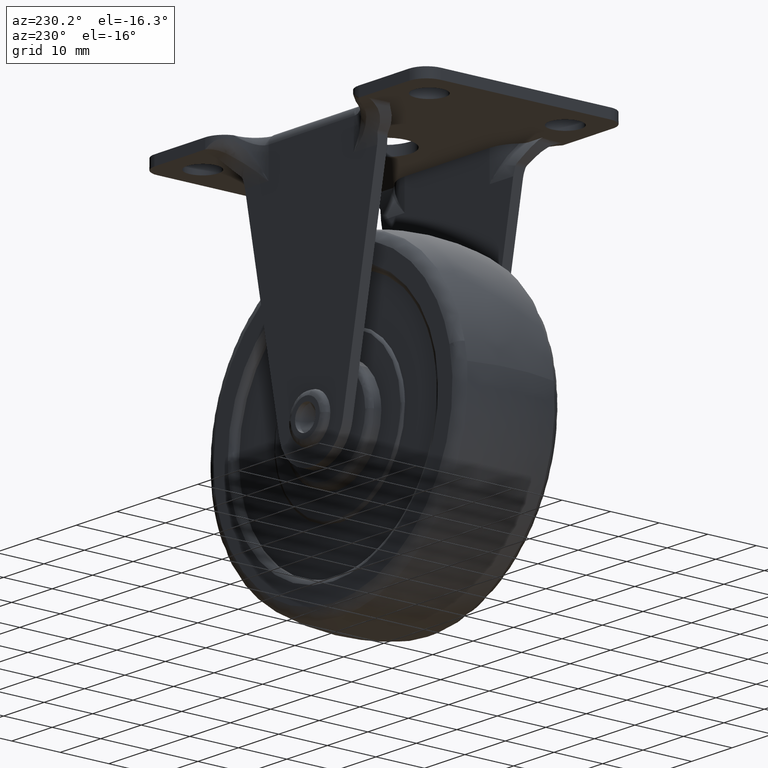
[diagram: clean part render]
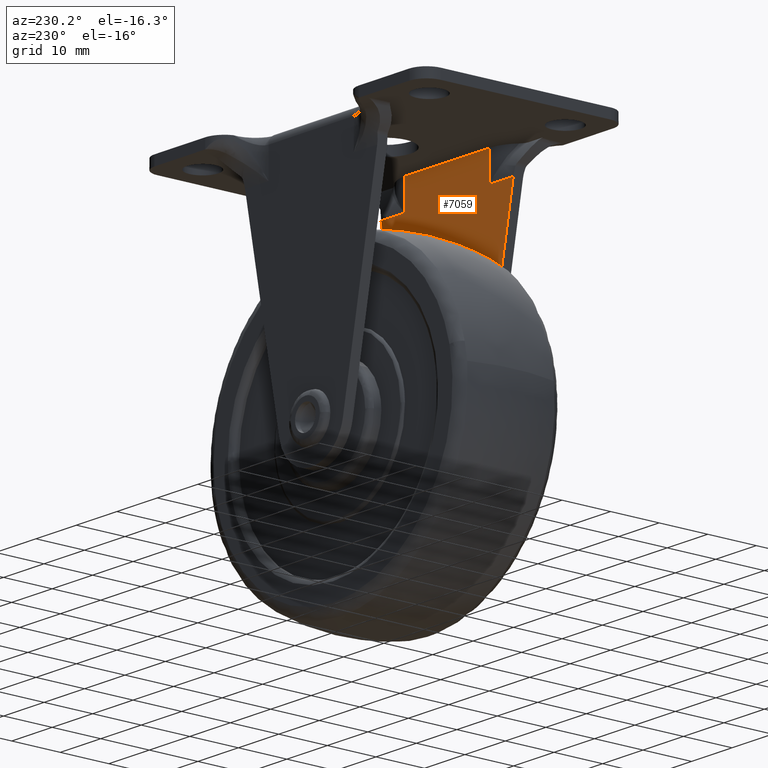
[diagram: same view with one face highlighted and labeled with its STEP entity id]
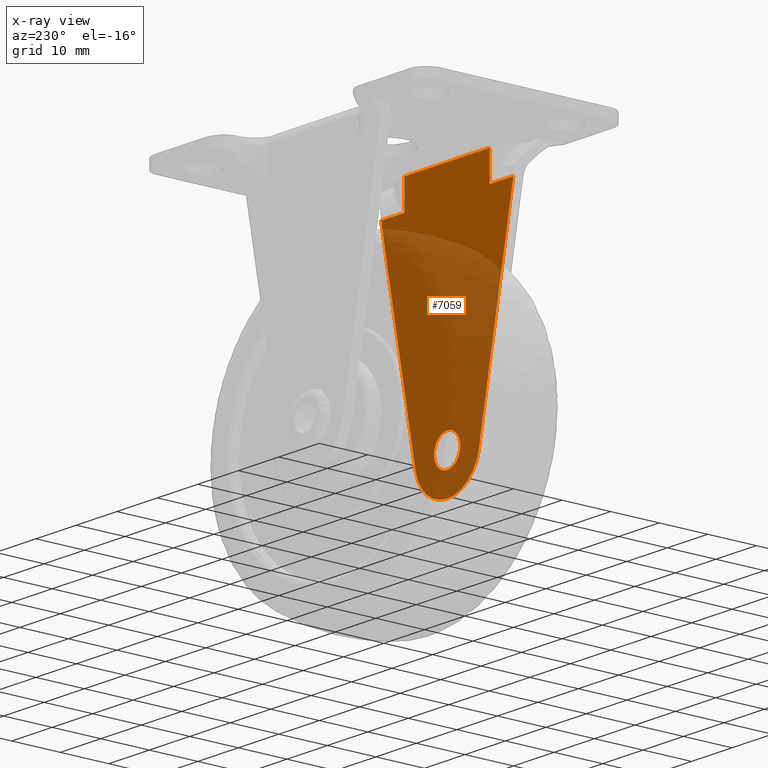
[diagram: x-ray of the same camera — body ghosted, the highlighted face saturated]
A machine part, auxiliary view. The second image highlights one B-rep face of the part: STEP entity #7059.
The next image is the same camera in x-ray: the body ghosted, the highlighted face saturated — about 71% of this face is hidden behind the body in this view.
In plain terms, the highlighted face is a freeform B-spline surface patch.
Its self-contained STEP definition (entity closure, byte-faithful):
#3365=CARTESIAN_POINT('',(0.0,-13.0,8.250000000000000));
#3366=VERTEX_POINT('',#3365);
#3367=CARTESIAN_POINT('',(2.329115324815828,-13.000000000008971,7.266653786296206));
#3368=VERTEX_POINT('',#3367);
#3369=CARTESIAN_POINT('',(0.0,-13.0,8.250000000000000));
#3370=CARTESIAN_POINT('',(0.256970867640964,-13.000000000001000,8.250057015038937));
#3371=CARTESIAN_POINT('',(0.716772829669965,-13.000000000002750,8.195163997957780));
#3372=CARTESIAN_POINT('',(1.539048269861160,-13.000000000005940,7.912833036176410));
#3373=CARTESIAN_POINT('',(2.046383060699153,-13.000000000007891,7.557765771928701));
#3374=CARTESIAN_POINT('',(2.329115324815828,-13.000000000008971,7.266653786296206));
#3375=B_SPLINE_CURVE_WITH_KNOTS('',3,(#3369,#3370,#3371,#3372,#3373,#3374),.UNSPECIFIED.,.F.,.U.,(4,1,1,4),(0.000000031797549,0.770907020071384,1.379504647372482,2.596729086568806),.UNSPECIFIED.);
#3376=EDGE_CURVE('',#3366,#3368,#3375,.T.);
#3439=CARTESIAN_POINT('',(2.396151679918114,-12.999999999989720,2.804331642689335));
#3440=VERTEX_POINT('',#3439);
#3446=CARTESIAN_POINT('',(0.0,-13.0,1.750000000000000));
#3447=VERTEX_POINT('',#3446);
#3448=CARTESIAN_POINT('',(2.396151679918114,-12.999999999989720,2.804331642689335));
#3449=CARTESIAN_POINT('',(2.187664821071553,-12.999999999990640,2.576613204500716));
#3450=CARTESIAN_POINT('',(1.781850320195358,-12.999999999992330,2.244348066195585));
#3451=CARTESIAN_POINT('',(0.968115099090186,-12.999999999995870,1.854264059239442));
#3452=CARTESIAN_POINT('',(0.378933726983593,-12.999999999998350,1.749749896012651));
#3453=CARTESIAN_POINT('',(0.0,-13.0,1.750000000000000));
#3454=B_SPLINE_CURVE_WITH_KNOTS('',3,(#3448,#3449,#3450,#3451,#3452,#3453),.UNSPECIFIED.,.F.,.U.,(4,1,1,4),(0.000000033832529,0.926191723418197,1.557682210640198,2.694371114665781),.UNSPECIFIED.);
#3455=EDGE_CURVE('',#3440,#3447,#3454,.T.);
#3457=CARTESIAN_POINT('',(-3.249999999999659,-13.0,5.000001487796945));
#3458=VERTEX_POINT('',#3457);
#3459=CARTESIAN_POINT('',(0.0,-13.0,1.750000000000000));
#3460=CARTESIAN_POINT('',(-0.265885826310707,-13.0,1.749952367618813));
#3461=CARTESIAN_POINT('',(-0.850852319143115,-12.999999999999989,1.822109063394571));
#3462=CARTESIAN_POINT('',(-1.633089698440202,-13.000000000000011,2.146061872238970));
#3463=CARTESIAN_POINT('',(-2.216152493243520,-13.000000000000011,2.595540245499515));
#3464=CARTESIAN_POINT('',(-2.657669914598653,-13.0,3.094863719753596));
#3465=CARTESIAN_POINT('',(-2.991434776286388,-13.0,3.659440940952537));
#3466=CARTESIAN_POINT('',(-3.205485515212404,-12.999999999999989,4.335281803296847));
#3467=CARTESIAN_POINT('',(-3.250017945566640,-13.0,4.787291646316724));
#3468=CARTESIAN_POINT('',(-3.249999999999659,-13.0,5.000001487796945));
#3469=B_SPLINE_CURVE_WITH_KNOTS('',3,(#3459,#3460,#3461,#3462,#3463,#3464,#3465,#3466,#3467,#3468),.UNSPECIFIED.,.F.,.U.,(4,1,1,1,1,1,1,4),(0.000000113966560,0.797664369919032,1.754898676115779,2.512711383816618,2.991262029375205,3.749071992039072,4.466986997800102,5.105120932906210),.UNSPECIFIED.);
#3470=EDGE_CURVE('',#3447,#3458,#3469,.T.);
#3472=CARTESIAN_POINT('',(-3.249999999999659,-13.0,5.000001487796945));
#3473=CARTESIAN_POINT('',(-3.250202058730376,-13.000000000000030,5.358975961622683));
#3474=CARTESIAN_POINT('',(-3.136554244261292,-12.999999999999980,6.036875397549130));
#3475=CARTESIAN_POINT('',(-2.697071934893972,-12.999999999999989,6.883828384066436));
#3476=CARTESIAN_POINT('',(-2.086253312737548,-13.000000000000011,7.541391867981304));
#3477=CARTESIAN_POINT('',(-1.391573261260832,-13.000000000000041,7.975310517837198));
#3478=CARTESIAN_POINT('',(-0.664716105123325,-12.999999999999901,8.205477556522965));
#3479=CARTESIAN_POINT('',(-0.212710830796193,-13.000000000000130,8.250021908561999));
#3480=CARTESIAN_POINT('',(0.0,-13.0,8.250000000000000));
#3481=B_SPLINE_CURVE_WITH_KNOTS('',3,(#3472,#3473,#3474,#3475,#3476,#3477,#3478,#3479,#3480),.UNSPECIFIED.,.F.,.U.,(4,1,1,1,1,1,4),(0.000000114484727,1.076858108457942,2.034093156163409,2.831744693986651,3.749070760498134,4.466985529434083,5.105119255801801),.UNSPECIFIED.);
#3482=EDGE_CURVE('',#3458,#3366,#3481,.T.);
#3501=CARTESIAN_POINT('',(3.249999999999659,-13.0,4.999998512203105));
#3502=VERTEX_POINT('',#3501);
#3503=CARTESIAN_POINT('',(2.329115324815828,-13.000000000008971,7.266653786296206));
#3504=CARTESIAN_POINT('',(2.456679927574144,-13.000000000008439,7.135581571735081));
#3505=CARTESIAN_POINT('',(2.739557973987650,-13.000000000007111,6.791053625301121));
#3506=CARTESIAN_POINT('',(3.130330670413340,-13.000000000004119,6.044965366058872));
#3507=CARTESIAN_POINT('',(3.250340572873685,-13.000000000001570,5.391983792564863));
#3508=CARTESIAN_POINT('',(3.249999999999659,-13.0,4.999998512203105));
#3509=B_SPLINE_CURVE_WITH_KNOTS('',3,(#3503,#3504,#3505,#3506,#3507,#3508),.UNSPECIFIED.,.F.,.U.,(4,1,1,4),(0.000000026769014,0.548709627388312,1.332576467142457,2.508392232311217),.UNSPECIFIED.);
#3510=EDGE_CURVE('',#3368,#3502,#3509,.T.);
#3512=CARTESIAN_POINT('',(3.249999999999659,-13.0,4.999998512203105));
#3513=CARTESIAN_POINT('',(3.250138484803813,-12.999999999998360,4.673533139270334));
#3514=CARTESIAN_POINT('',(3.160337621429038,-12.999999999995829,4.083472444701382));
#3515=CARTESIAN_POINT('',(2.827946991271536,-12.999999999992241,3.345322392544881));
#3516=CARTESIAN_POINT('',(2.540368783812136,-12.999999999990470,2.961690810162900));
#3517=CARTESIAN_POINT('',(2.396151679918114,-12.999999999989720,2.804331642689335));
#3518=B_SPLINE_CURVE_WITH_KNOTS('',3,(#3512,#3513,#3514,#3515,#3516,#3517),.UNSPECIFIED.,.F.,.U.,(4,1,1,4),(0.000000024761972,0.979373264099598,1.770392916128511,2.410748079395678),.UNSPECIFIED.);
#3519=EDGE_CURVE('',#3502,#3440,#3518,.T.);
#6137=CARTESIAN_POINT('',(10.514709999999999,-13.0,46.500000000000000));
#6138=VERTEX_POINT('',#6137);
#6376=CARTESIAN_POINT('',(-10.514711081367521,-13.000000000005681,46.500000000000000));
#6377=VERTEX_POINT('',#6376);
#6862=CARTESIAN_POINT('',(-10.514711081367521,-13.000000000005681,52.500000000000000));
#6863=VERTEX_POINT('',#6862);
#6864=CARTESIAN_POINT('',(-10.514711081367521,-13.000000000005681,46.500000000000000));
#6865=CARTESIAN_POINT('',(-10.514711081367521,-13.000000000005681,52.500000000000000));
#6866=QUASI_UNIFORM_CURVE('',1,(#6864,#6865),.UNSPECIFIED.,.F.,.U.);
#6867=EDGE_CURVE('',#6377,#6863,#6866,.T.);
#6896=CARTESIAN_POINT('',(10.514710000000139,-13.0,52.500000000000000));
#6897=VERTEX_POINT('',#6896);
#6909=CARTESIAN_POINT('',(10.514709999999999,-13.0,46.500000000000000));
#6910=CARTESIAN_POINT('',(10.514710000000139,-13.0,52.500000000000000));
#6911=QUASI_UNIFORM_CURVE('',1,(#6909,#6910),.UNSPECIFIED.,.F.,.U.);
#6912=EDGE_CURVE('',#6138,#6897,#6911,.T.);
#6987=CARTESIAN_POINT('',(-17.965455242359109,-13.0,-5.772235035586673));
#6988=CARTESIAN_POINT('',(-17.965455242359109,-13.0,55.272226863603613));
#6989=CARTESIAN_POINT('',(17.965448889688581,-13.0,-5.772235035586673));
#6990=CARTESIAN_POINT('',(17.965448889688581,-13.0,55.272226863603613));
#6991=B_SPLINE_SURFACE_WITH_KNOTS('',1,1,((#6987,#6989),(#6988,#6990)),.UNSPECIFIED.,.F.,.F.,.U.,(2,2),(2,2),(0.0,61.044461899190289),(0.0,35.930904132047687),.UNSPECIFIED.);
#6992=CARTESIAN_POINT('',(-16.333717015647000,-13.0,46.500000000000000));
#6993=VERTEX_POINT('',#6992);
#6994=CARTESIAN_POINT('',(-7.848986975766269,-13.0,3.452937152455845));
#6995=VERTEX_POINT('',#6994);
#6996=CARTESIAN_POINT('',(-16.333717015647000,-13.0,46.500000000000000));
#6997=CARTESIAN_POINT('',(-7.848986975766269,-13.0,3.452937152455845));
#6998=QUASI_UNIFORM_CURVE('',1,(#6996,#6997),.UNSPECIFIED.,.F.,.U.);
#6999=EDGE_CURVE('',#6993,#6995,#6998,.T.);
#7000=ORIENTED_EDGE('',*,*,#6999,.F.);
#7001=CARTESIAN_POINT('',(-16.333717015647000,-13.0,46.500000000000000));
#7002=CARTESIAN_POINT('',(-10.514711081367521,-13.000000000005681,46.500000000000000));
#7003=QUASI_UNIFORM_CURVE('',1,(#7001,#7002),.UNSPECIFIED.,.F.,.U.);
#7004=EDGE_CURVE('',#6993,#6377,#7003,.T.);
#7005=ORIENTED_EDGE('',*,*,#7004,.T.);
#7006=ORIENTED_EDGE('',*,*,#6867,.T.);
#7007=CARTESIAN_POINT('',(-10.514711081367521,-13.000000000005681,52.500000000000000));
#7008=CARTESIAN_POINT('',(10.514710000000139,-13.0,52.500000000000000));
#7009=QUASI_UNIFORM_CURVE('',1,(#7007,#7008),.UNSPECIFIED.,.F.,.U.);
#7010=EDGE_CURVE('',#6863,#6897,#7009,.T.);
#7011=ORIENTED_EDGE('',*,*,#7010,.T.);
#7012=ORIENTED_EDGE('',*,*,#6912,.F.);
#7013=CARTESIAN_POINT('',(16.333710078837349,-13.0,46.500000000000000));
#7014=VERTEX_POINT('',#7013);
#7015=CARTESIAN_POINT('',(10.514709999999999,-13.0,46.500000000000000));
#7016=CARTESIAN_POINT('',(16.333710078837349,-13.0,46.500000000000000));
#7017=QUASI_UNIFORM_CURVE('',1,(#7015,#7016),.UNSPECIFIED.,.F.,.U.);
#7018=EDGE_CURVE('',#6138,#7014,#7017,.T.);
#7019=ORIENTED_EDGE('',*,*,#7018,.T.);
#7020=CARTESIAN_POINT('',(7.846932247935651,-13.0,3.442548782045605));
#7021=VERTEX_POINT('',#7020);
#7022=CARTESIAN_POINT('',(7.846932247935651,-13.0,3.442548782045605));
#7023=CARTESIAN_POINT('',(16.333710078837349,-13.0,46.500000000000000));
#7024=QUASI_UNIFORM_CURVE('',1,(#7022,#7023),.UNSPECIFIED.,.F.,.U.);
#7025=EDGE_CURVE('',#7021,#7014,#7024,.T.);
#7026=ORIENTED_EDGE('',*,*,#7025,.F.);
#7027=CARTESIAN_POINT('',(7.846932247935651,-13.0,3.442548782045605));
#7028=CARTESIAN_POINT('',(7.768846354976973,-13.0,3.049032196680977));
#7029=CARTESIAN_POINT('',(7.545603227700584,-13.000000000000020,2.246101097641451));
#7030=CARTESIAN_POINT('',(6.997978775907779,-13.0,1.042314024504522));
#7031=CARTESIAN_POINT('',(6.235495566178594,-12.999999999999959,-0.074772995234637));
#7032=CARTESIAN_POINT('',(5.293986912485002,-13.000000000000011,-1.044051731800759));
#7033=CARTESIAN_POINT('',(4.209128699380675,-13.0,-1.849655766345787));
#7034=CARTESIAN_POINT('',(2.872856276676656,-12.999999999999970,-2.523163188476290));
#7035=CARTESIAN_POINT('',(1.399791252501536,-13.000000000000041,-2.927629294479673));
#7036=CARTESIAN_POINT('',(0.109077808756399,-12.999999999999890,-3.023972795147531));
#7037=CARTESIAN_POINT('',(-1.122384833725214,-13.000000000000060,-2.950312685920894));
#7038=CARTESIAN_POINT('',(-2.334526697368316,-13.0,-2.698519192310627));
#7039=CARTESIAN_POINT('',(-3.586133302119440,-12.999999999999980,-2.187597259739210));
#7040=CARTESIAN_POINT('',(-4.717276617860445,-13.000000000000011,-1.504408634287096));
#7041=CARTESIAN_POINT('',(-5.703920369192727,-13.0,-0.665703054719901));
#7042=CARTESIAN_POINT('',(-6.586909958070623,-13.000000000000011,0.394839958803544));
#7043=CARTESIAN_POINT('',(-7.369095217708410,-13.0,1.736708149504907));
#7044=CARTESIAN_POINT('',(-7.721702692302291,-12.999999999999989,2.806221034544544));
#7045=CARTESIAN_POINT('',(-7.848986975766269,-13.0,3.452937152455845));
#7046=B_SPLINE_CURVE_WITH_KNOTS('',3,(#7027,#7028,#7029,#7030,#7031,#7032,#7033,#7034,#7035,#7036,#7037,#7038,#7039,#7040,#7041,#7042,#7043,#7044,#7045),.UNSPECIFIED.,.F.,.U.,(4,1,1,1,1,1,1,1,1,1,1,1,1,1,1,1,4),(0.000000140502657,1.203572246636909,2.493115458923167,3.954637227073352,5.244217341401651,6.533792217094401,7.995313090529640,9.714744176677669,11.090198803892971,11.863920869459040,13.411404396505221,14.786965886630860,15.904588404121300,17.366099998771009,18.655681476536781,20.031192261972048,22.008514714943551),.UNSPECIFIED.);
#7047=EDGE_CURVE('',#7021,#6995,#7046,.T.);
#7048=ORIENTED_EDGE('',*,*,#7047,.T.);
#7049=EDGE_LOOP('',(#7000,#7005,#7006,#7011,#7012,#7019,#7026,#7048));
#7050=FACE_OUTER_BOUND('',#7049,.T.);
#7051=ORIENTED_EDGE('',*,*,#3470,.F.);
#7052=ORIENTED_EDGE('',*,*,#3455,.F.);
#7053=ORIENTED_EDGE('',*,*,#3519,.F.);
#7054=ORIENTED_EDGE('',*,*,#3510,.F.);
#7055=ORIENTED_EDGE('',*,*,#3376,.F.);
#7056=ORIENTED_EDGE('',*,*,#3482,.F.);
#7057=EDGE_LOOP('',(#7051,#7052,#7053,#7054,#7055,#7056));
#7058=FACE_BOUND('',#7057,.T.);
#7059=ADVANCED_FACE('',(#7050,#7058),#6991,.T.);